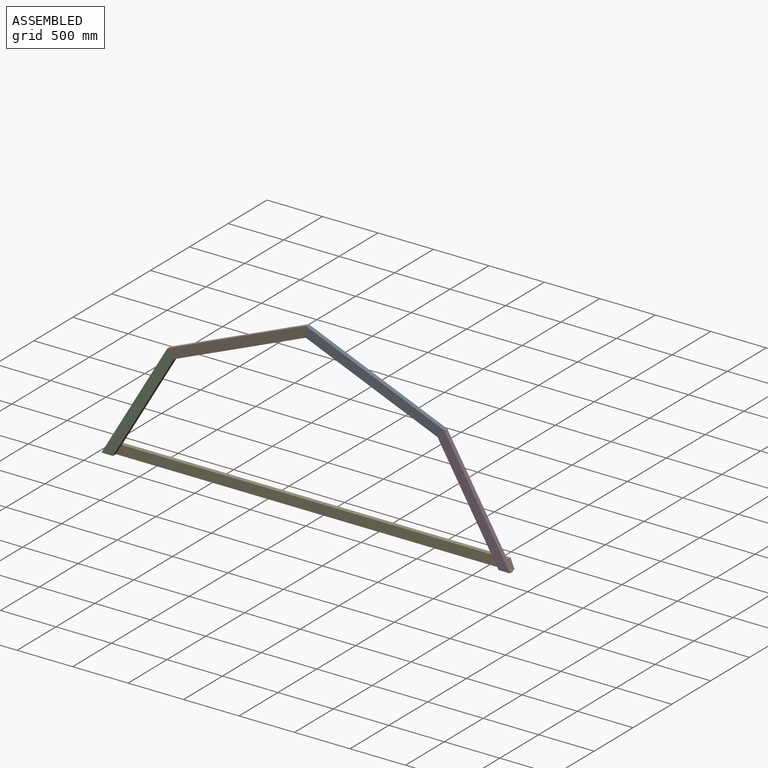
[diagram: assembled view]
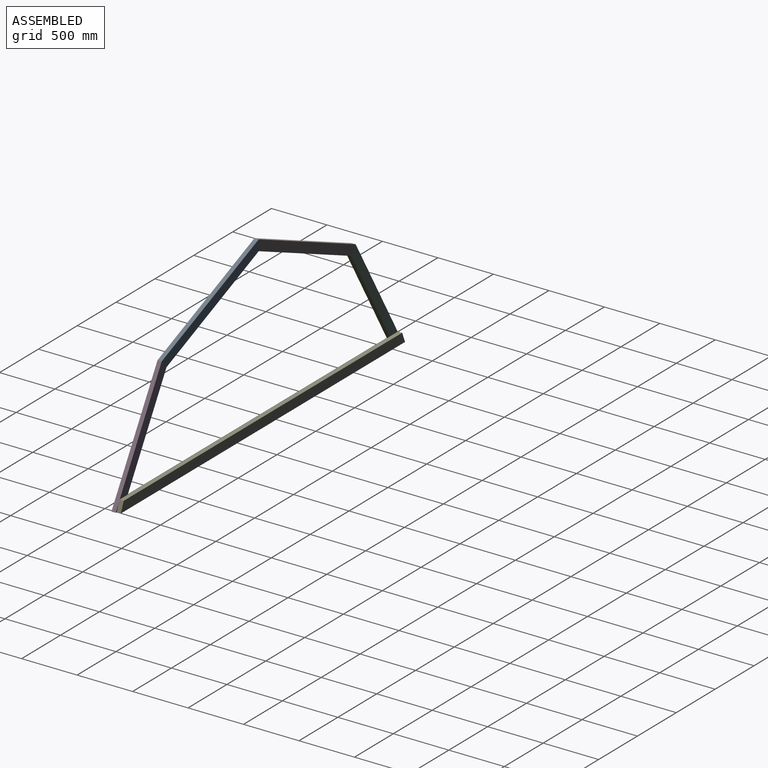
[diagram: assembled view, second angle]
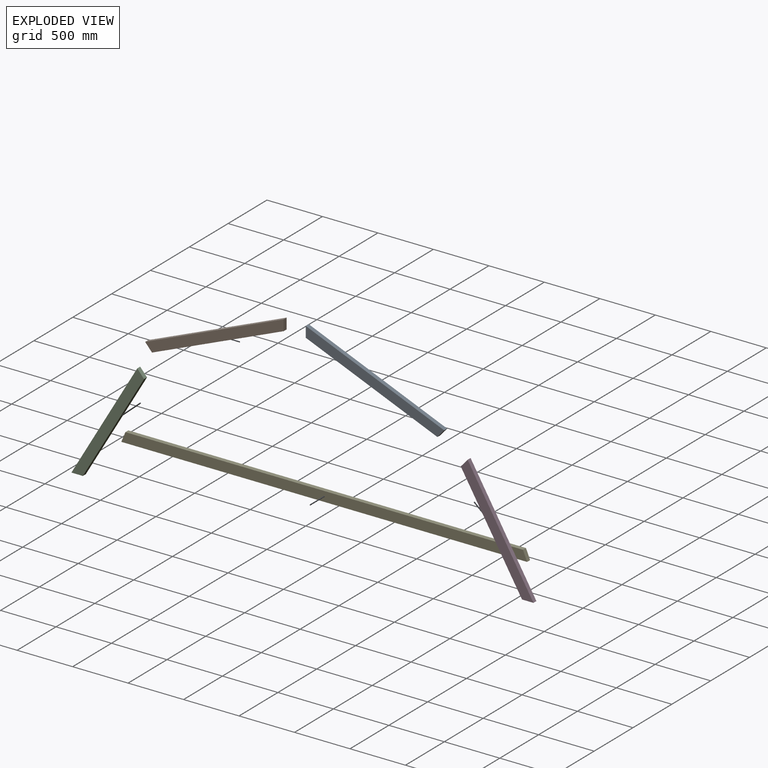
[diagram: exploded view]
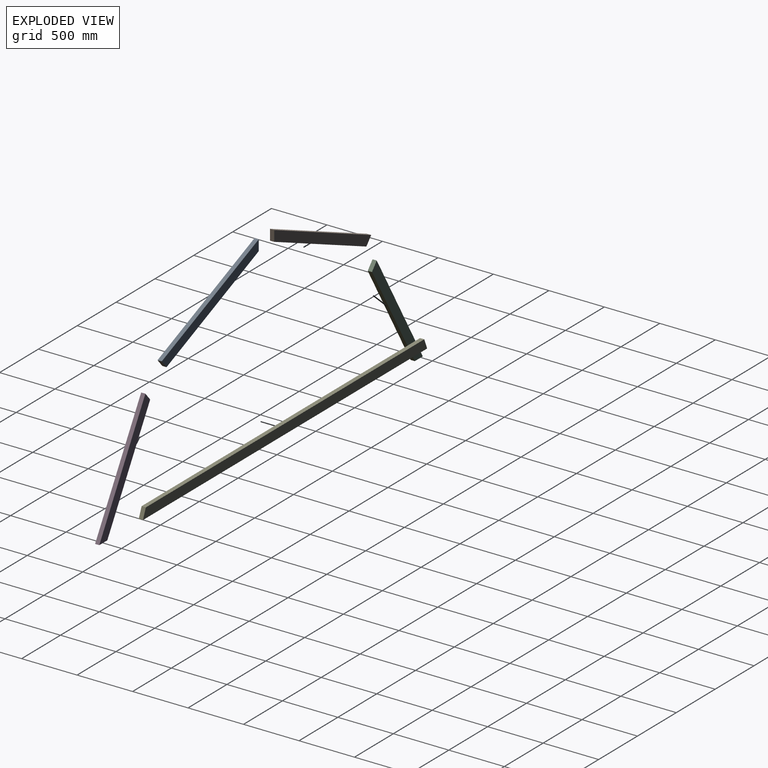
[diagram: exploded view, second angle]
ASSEMBLY  parts=5 mates=4
PART A: 6 faces, bbox 1248.1x38.1x587.7 mm
  f0: plane 1186.63x491.52mm, normal (0.38,0,-0.92), area 48935.7mm2, adj f1,f3,f4,f5
  f1: plane 96.22x38.1mm, normal (1,0,0), area 3666.2mm2, adj f0,f2,f4,f5
  f2: plane 1248.13x516.99mm, normal (-0.38,0,0.92), area 51471.7mm2, adj f1,f3,f4,f5
  f3: plane 70.75x61.5mm, normal (-0.75,0,-0.66), area 3571.6mm2, adj f0,f2,f4,f5
  f4: plane 1248.13x587.74mm, normal (0,-1,0), area 117141.9mm2, adj f0,f1,f2,f3
  f5: plane 1248.13x587.74mm, normal (0,1,0), area 117141.9mm2, adj f0,f1,f2,f3
PART B: same geometry as A
PART C: 6 faces, bbox 654.9x38.1x1007 mm
  f0: plane 103.19x38.1mm, normal (0,0,-1), area 3931.4mm2, adj f1,f3,f4,f5
  f1: plane 936.26x551.68mm, normal (0.86,0,-0.51), area 41403.5mm2, adj f0,f2,f4,f5
  f2: plane 70.75x61.5mm, normal (0.75,0,0.66), area 3571.6mm2, adj f1,f3,f4,f5
  f3: plane 1007.01x593.37mm, normal (-0.86,0,0.51), area 44532.4mm2, adj f0,f2,f4,f5
  f4: plane 1007.01x654.87mm, normal (0,-1,0), area 100258.5mm2, adj f0,f1,f2,f3
  f5: plane 1007.01x654.87mm, normal (0,1,0), area 100258.5mm2, adj f0,f1,f2,f3
PART D: same geometry as C
PART E: 6 faces, bbox 3657.6x38.1x88.9 mm
  f0: plane 88.9x38.1mm, normal (-0.92,0,0.38), area 3666.2mm2, adj f1,f3,f4,f5
  f1: plane 3657.6x38.1mm, normal (0,0,-1), area 139354.6mm2, adj f0,f2,f4,f5
  f2: plane 88.9x38.1mm, normal (0.92,0,0.38), area 3666.2mm2, adj f1,f3,f4,f5
  f3: plane 3583.95x38.1mm, normal (0,0,1), area 136548.6mm2, adj f0,f2,f4,f5
  f4: plane 3657.6x88.9mm, normal (0,-1,0), area 321887mm2, adj f0,f1,f2,f3
  f5: plane 3657.6x88.9mm, normal (0,1,0), area 321887mm2, adj f0,f1,f2,f3
PLACE A rot(axis=(0,0,1),180deg) t=(2808.49,548.56,-498.72)mm
PLACE B t=(-1147.99,548.56,-498.72)mm
PLACE C t=(-565.11,548.56,-191.44)mm
PLACE D rot(axis=(0,0,1),180deg) t=(2225.61,548.56,-191.44)mm
PLACE E t=(830.25,586.66,-535.14)mm
MATE fastened A.f1 <-> B.f1  axis (-1,0,0) through (830.25,548.56,896.29)mm
MATE fastened C.f2 <-> B.f3  axis (0.75,0,0.66) through (-387.13,548.56,392.04)mm
MATE fastened A.f3 <-> D.f2  axis (0.75,0,-0.66) through (2047.63,548.56,392.04)mm
MATE fastened E.f4 <-> D.f4  axis (0,-1,0) through (2659.05,567.61,-579.59)mm
